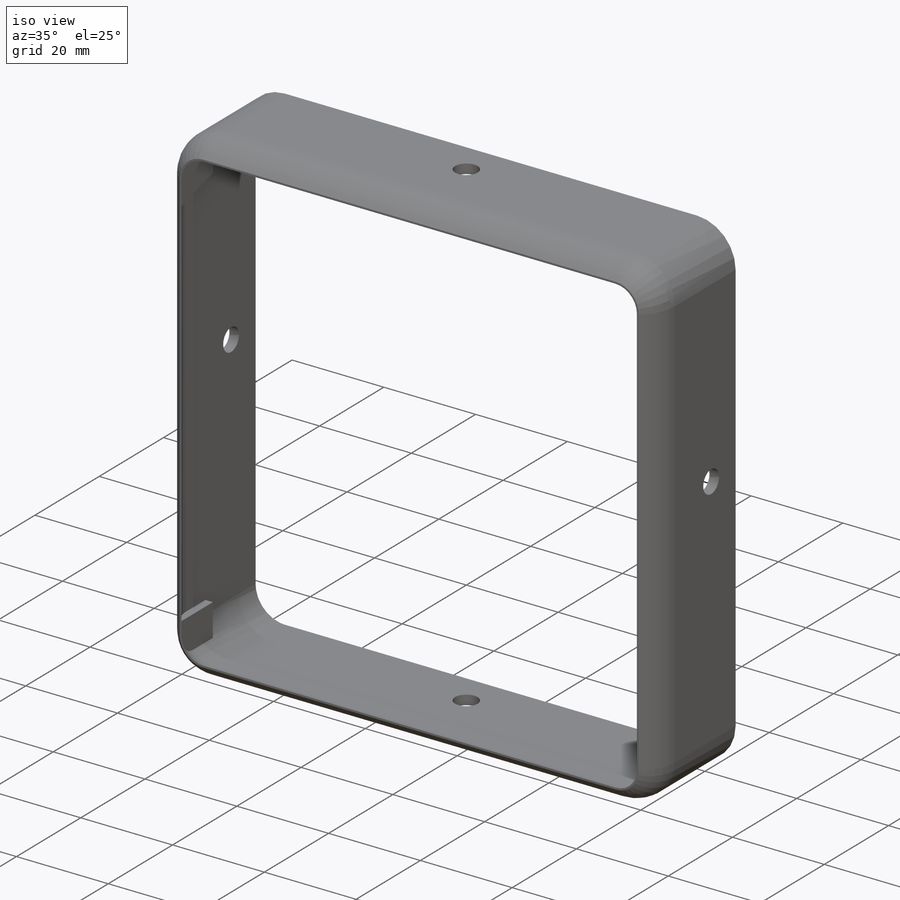
[diagram: iso view]
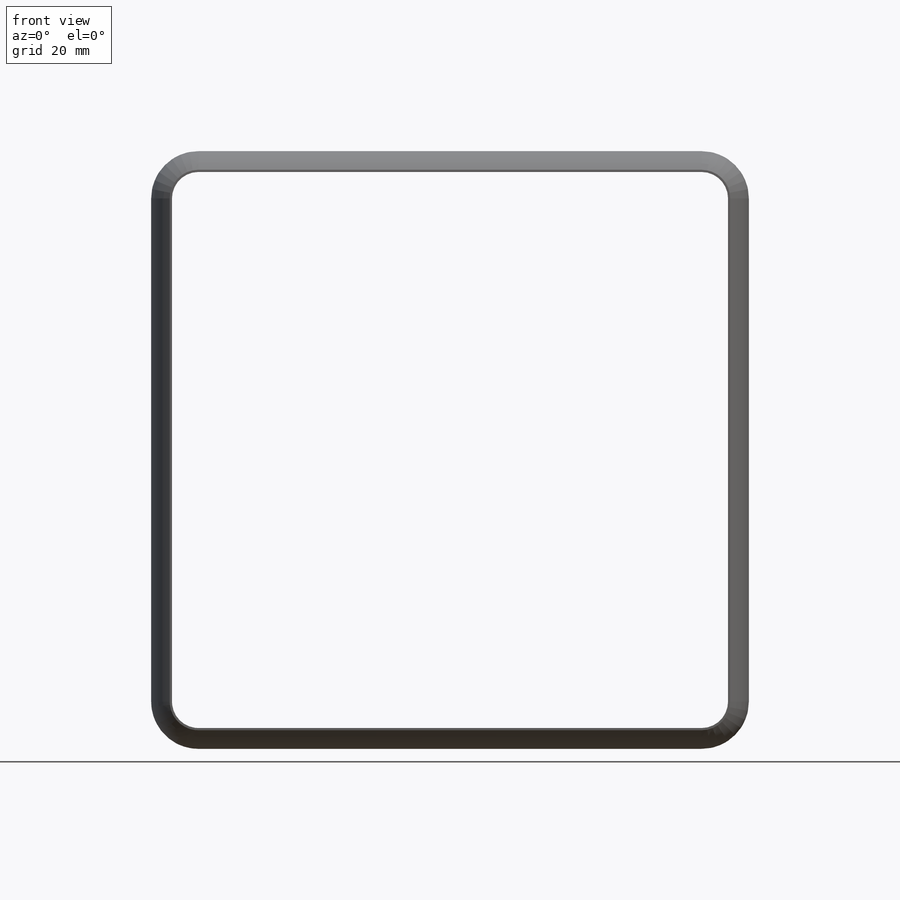
[diagram: front view]
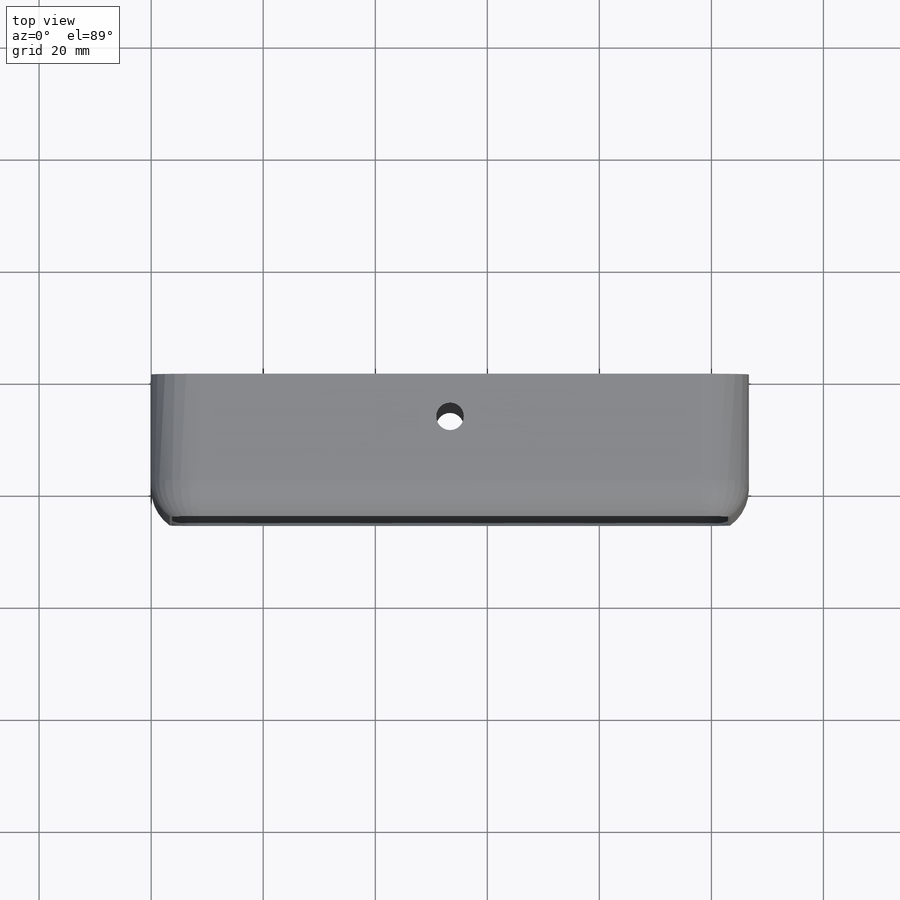
[diagram: top view]
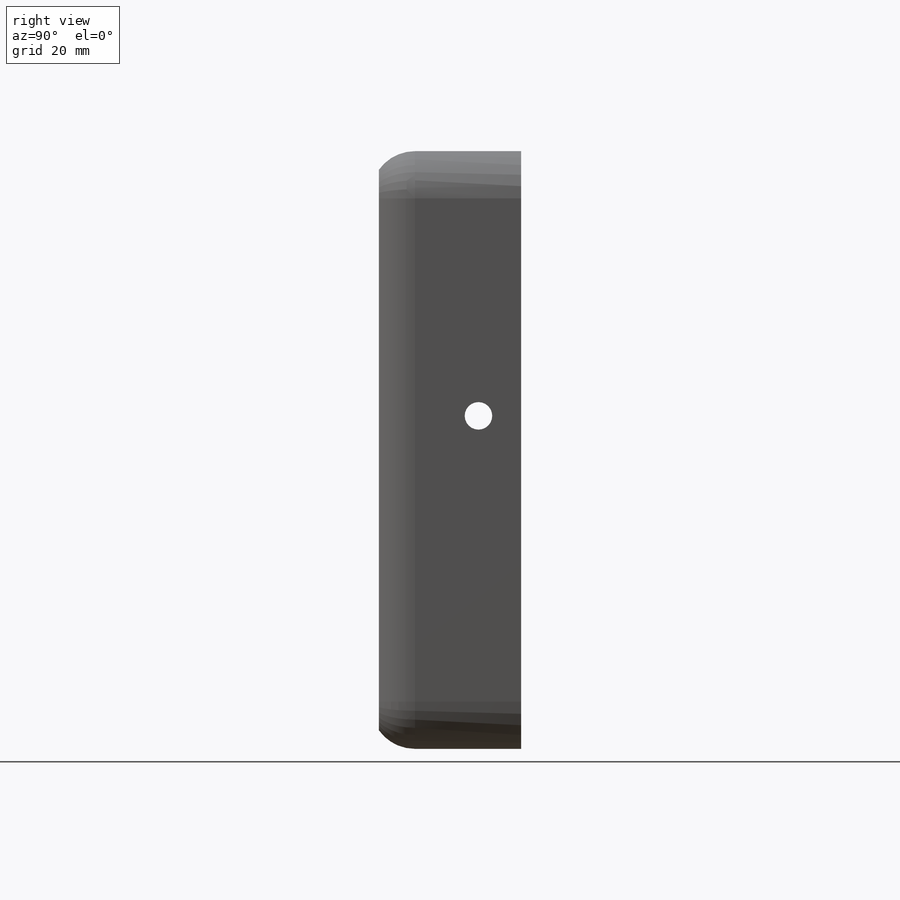
[diagram: right view]
SOLIDWORKS PART (.sldprt)
format: sldprt  version: not decoded by parser v0  size: 391,168 bytes
history: native  units: mm
features: sketch x14, plane x4, extrude x2, hole x2, material x1, sweep x1, cut_extrude x1 (+16 scaffold rows collapsed)
feature tree (41):
  scaffold x16  (default folders/planes/origin — collapsed)
  material  "Material <not specified>"
  sketch  "Sketch2"  dims[c1.D4=9.525mm c1.D5=15.875mm c1.D6=15.875mm c1.D1=25.4mm c1.D2=2.0828mm c1.D3=~3.71475mm c2.D6=~0.396875mm]
  sketch  "Sketch3"  dims[c1.D3=8.4328mm c1.D1=106.68mm c1.D2=106.68mm c2.D3=106.68mm]
  plane  "Plane1"
  sketch  "Sketch4"
  sweep  "Sweep6"
  plane  "Plane2"  Offset=11.2141mm
  sketch  "Sketch5"  dims[D1=15.6083mm]
  extrude  "Extrude1"  [1 undecoded]
  plane  "Plane4"  Offset=13.716mm
  sketch  "Sketch6"
  plane  "Plane5"
  sketch  "Sketch8"  dims[D1=0.0mm D2=0.0mm]
  extrude  "Extrude2"  [1 undecoded]
  sketch  "Sketch10"  dims[c1.D1=~9.952971mm c2.D1=16.0deg]
  sketch  "Sketch12"  dims[D1=0.0mm D2=0.0mm]
  cut_extrude  "Extrude8"  [1 undecoded]
  sketch  "Sketch13"  dims[D1=7.62mm]
  hole  "#10 (0.1935) Diameter Hole1"  Diameter=4.9149mm Depth=106.68mm
  sketch  "3DSketch1"
  sketch  "Sketch15"  dims[hole-wizard template sketch: 60 standard entries collapsed; hole parameters kept: c18.Thru Hole Depth=106.68mm]
  sketch  "Sketch16"  dims[D1=7.62mm D2=59.436mm]
  hole  "#10 (0.1935) Diameter Hole2"  Diameter=4.9149mm Depth=106.680025mm
  sketch  "3DSketch2"
  sketch  "Sketch17"  dims[hole-wizard template sketch: 60 standard entries collapsed; hole parameters kept: c18.Thru Hole Depth=~106.680025mm]
decode coverage: 12 of 20 modeling features carry decoded parameters
note: ~ marks probable driven/reference dimensions
note: 3 parameter values undecoded
summary: no parameter record found for 3 features
note: suppression state not decoded; provenance and decode notes live in map.json
